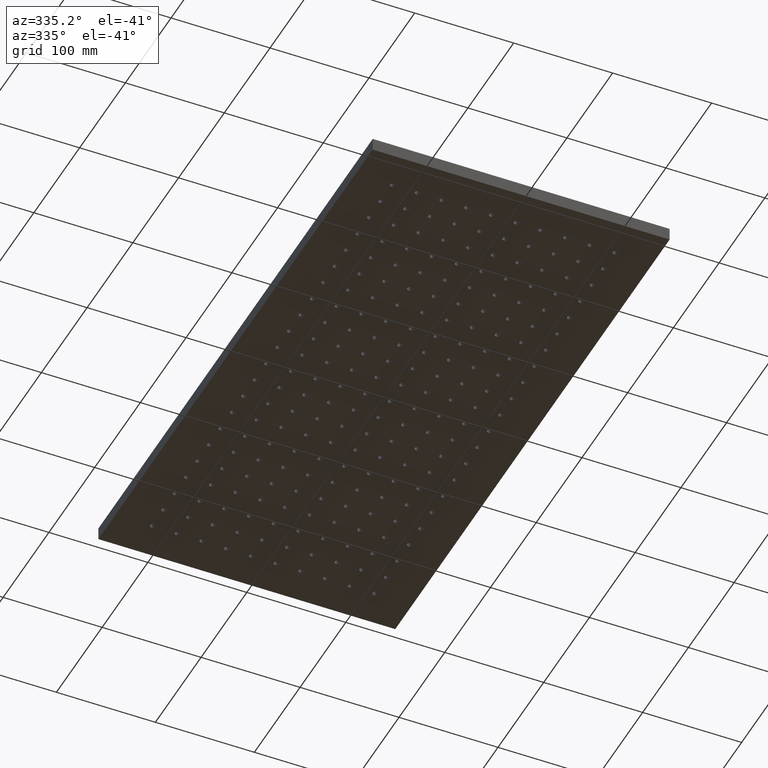
[diagram: clean part render]
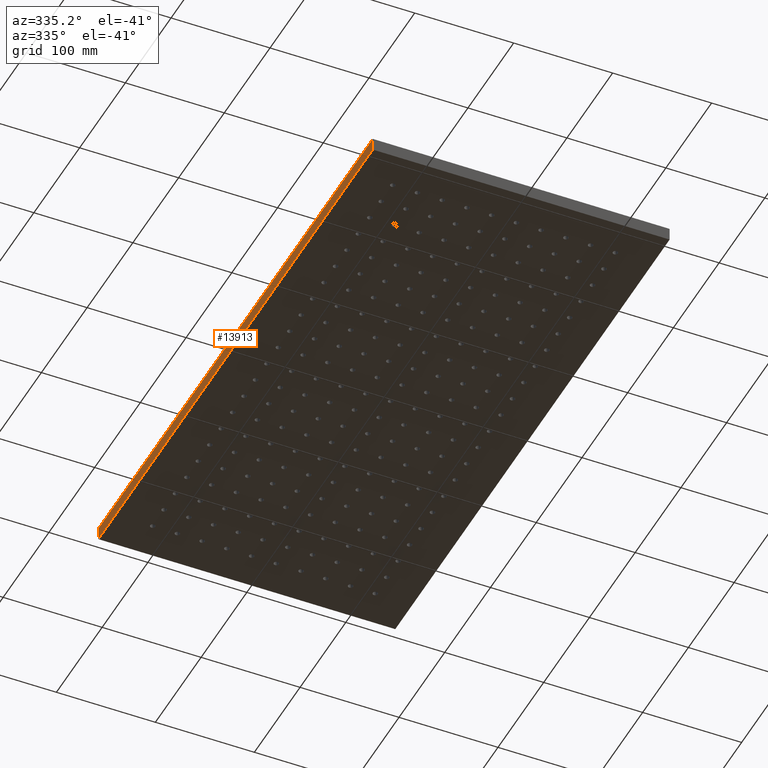
[diagram: same view with one face highlighted and labeled with its STEP entity id]
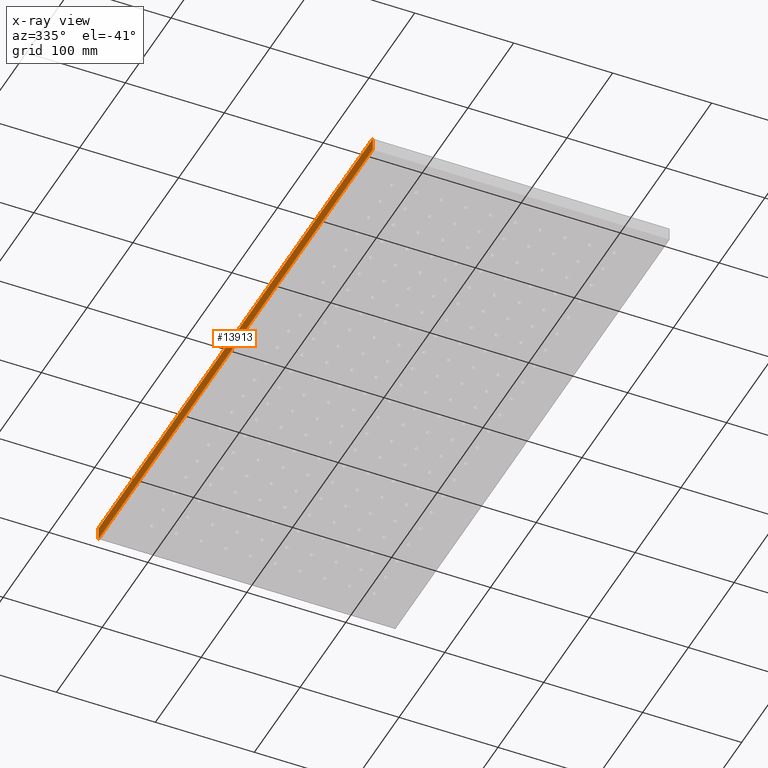
[diagram: x-ray of the same camera — body ghosted, the highlighted face saturated]
A machine part, auxiliary view. The second image highlights one B-rep face of the part: STEP entity #13913.
The next image is the same camera in x-ray: the body ghosted, the highlighted face saturated — about 0% of this face is hidden behind the body in this view.
In plain terms, the highlighted planar face has unit normal (1, 0, -0).
Its self-contained STEP definition (entity closure, byte-faithful):
#23 = CARTESIAN_POINT ( 'NONE',  ( -150.0000000000000900, 300.0000000000000600, 13.00000000000000000 ) ) ;
#837 = EDGE_CURVE ( 'NONE', #858, #10653, #16197, .T. ) ;
#858 = VERTEX_POINT ( 'NONE', #23 ) ;
#912 = CARTESIAN_POINT ( 'NONE',  ( -150.0000000000000000, -299.9999999999999400, 0.0000000000000000000 ) ) ;
#1969 = DIRECTION ( 'NONE',  ( 1.000000000000000000, 1.387778780781445900E-016, -0.0000000000000000000 ) ) ;
#2466 = DIRECTION ( 'NONE',  ( -0.0000000000000000000, -0.0000000000000000000, -1.000000000000000000 ) ) ;
#2535 = VERTEX_POINT ( 'NONE', #10396 ) ;
#2676 = VECTOR ( 'NONE', #14050, 1000.000000000000000 ) ;
#2795 = EDGE_CURVE ( 'NONE', #858, #2535, #7696, .T. ) ;
#2854 = EDGE_CURVE ( 'NONE', #10653, #8842, #3514, .T. ) ;
#3229 = AXIS2_PLACEMENT_3D ( 'NONE', #15889, #1969, #10835 ) ;
#3455 = DIRECTION ( 'NONE',  ( 1.387778780781445700E-016, -1.000000000000000000, 0.0000000000000000000 ) ) ;
#3514 = LINE ( 'NONE', #12335, #10263 ) ;
#4461 = PLANE ( 'NONE',  #3229 ) ;
#6145 = EDGE_LOOP ( 'NONE', ( #11006, #6709, #9486, #9116 ) ) ;
#6709 = ORIENTED_EDGE ( 'NONE', *, *, #10883, .F. ) ;
#7422 = CARTESIAN_POINT ( 'NONE',  ( -150.0000000000000900, 300.0000000000000600, 0.0000000000000000000 ) ) ;
#7679 = CARTESIAN_POINT ( 'NONE',  ( -150.0000000000000900, 300.0000000000000600, 13.00000000000000000 ) ) ;
#7696 = LINE ( 'NONE', #16010, #14028 ) ;
#8842 = VERTEX_POINT ( 'NONE', #912 ) ;
#9116 = ORIENTED_EDGE ( 'NONE', *, *, #837, .T. ) ;
#9400 = LINE ( 'NONE', #10075, #14961 ) ;
#9486 = ORIENTED_EDGE ( 'NONE', *, *, #2795, .F. ) ;
#10075 = CARTESIAN_POINT ( 'NONE',  ( -150.0000000000000000, -299.9999999999999400, 13.00000000000000000 ) ) ;
#10263 = VECTOR ( 'NONE', #3455, 1000.000000000000000 ) ;
#10396 = CARTESIAN_POINT ( 'NONE',  ( -150.0000000000000000, -299.9999999999999400, 13.00000000000000000 ) ) ;
#10653 = VERTEX_POINT ( 'NONE', #7422 ) ;
#10835 = DIRECTION ( 'NONE',  ( -1.387778780781445900E-016, 1.000000000000000000, 0.0000000000000000000 ) ) ;
#10883 = EDGE_CURVE ( 'NONE', #2535, #8842, #9400, .T. ) ;
#11006 = ORIENTED_EDGE ( 'NONE', *, *, #2854, .T. ) ;
#12335 = CARTESIAN_POINT ( 'NONE',  ( -150.0000000000000900, 300.0000000000000600, 0.0000000000000000000 ) ) ;
#13443 = DIRECTION ( 'NONE',  ( 1.387778780781445700E-016, -1.000000000000000000, 0.0000000000000000000 ) ) ;
#13913 = ADVANCED_FACE ( 'NONE', ( #16065 ), #4461, .F. ) ;
#14028 = VECTOR ( 'NONE', #13443, 1000.000000000000000 ) ;
#14050 = DIRECTION ( 'NONE',  ( -0.0000000000000000000, -0.0000000000000000000, -1.000000000000000000 ) ) ;
#14961 = VECTOR ( 'NONE', #2466, 1000.000000000000000 ) ;
#15889 = CARTESIAN_POINT ( 'NONE',  ( -150.0000000000000900, 300.0000000000000600, 13.00000000000000000 ) ) ;
#16010 = CARTESIAN_POINT ( 'NONE',  ( -150.0000000000000900, 300.0000000000000600, 13.00000000000000000 ) ) ;
#16065 = FACE_OUTER_BOUND ( 'NONE', #6145, .T. ) ;
#16197 = LINE ( 'NONE', #7679, #2676 ) ;